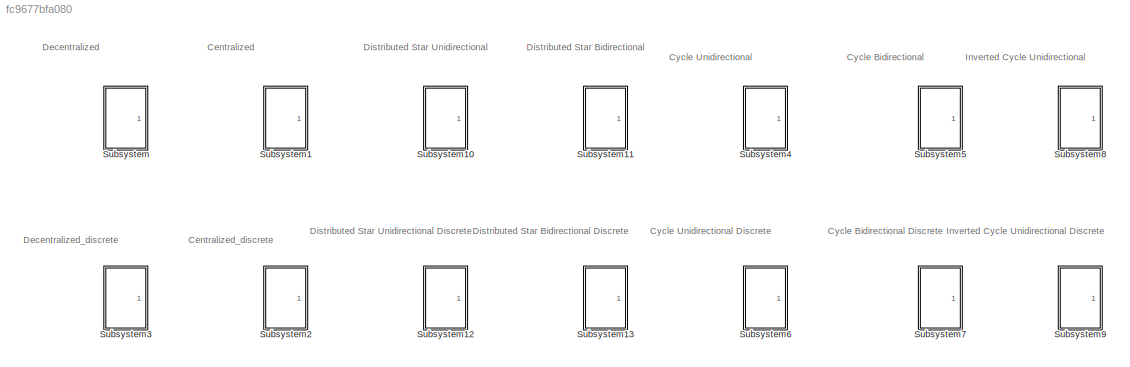
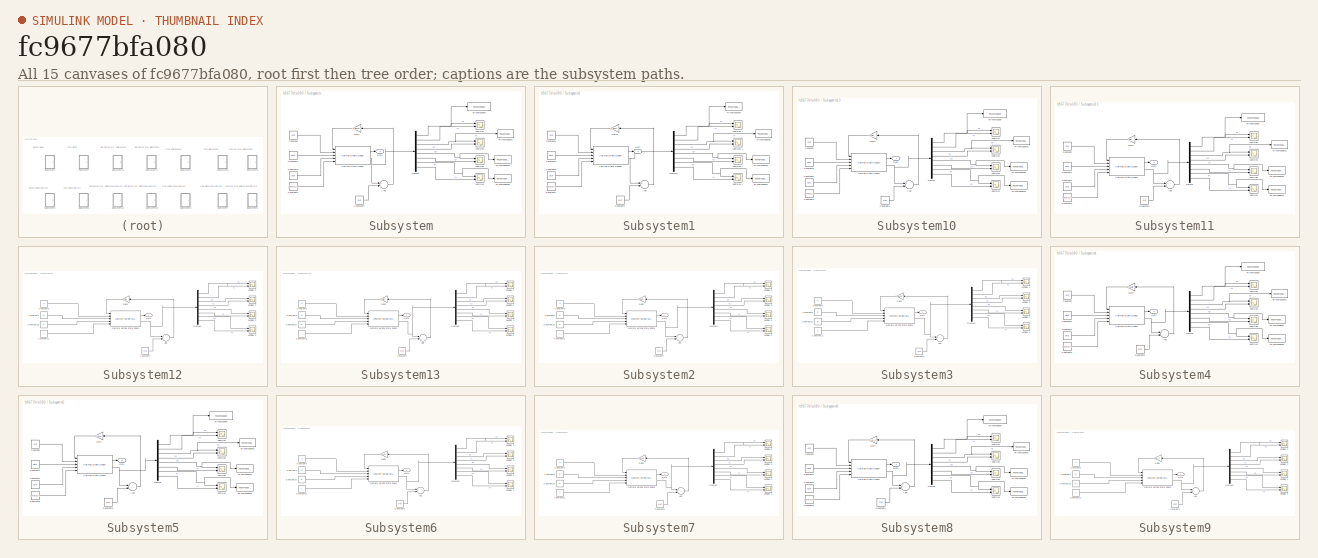
[diagram: thumbnail index - all 15 canvases of the model, root first then tree order]
MODEL slx_fc9677bfa080
KIND model
CONFIG AbsTol = auto
CONFIG EnableMultiTasking = off
CONFIG FixedStep = auto
CONFIG MaxStep = auto
CONFIG MinStep = auto
CONFIG RelTol = 1e-3
CONFIG SampleTimeConstraint = Unconstrained
CONFIG Solver = VariableStepAuto
CONFIG SolverName = VariableStepAuto
CONFIG StartTime = 0.0
CONFIG StopTime = 20
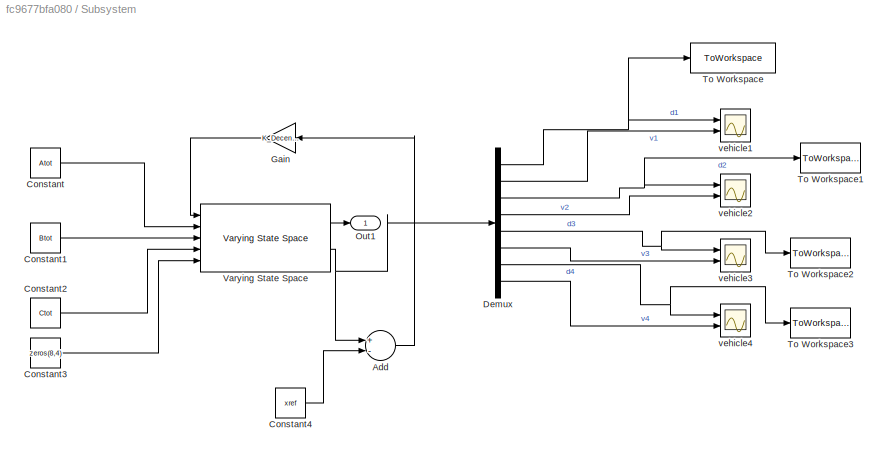
BLOCK [SubSystem] Subsystem
  Ports = [0, 1]
  RequestExecContextInheritance = off
BLOCK [Sum] Subsystem/Add
  InputSameDT = off
  Inputs = +-
  OutDataTypeStr = Inherit: Inherit via internal rule
  Ports = [2, 1]
  SaturateOnIntegerOverflow = off
BLOCK [Constant] Subsystem/Constant
  Value = Atot
BLOCK [Constant] Subsystem/Constant1
  Value = Btot
BLOCK [Constant] Subsystem/Constant2
  Value = Ctot
BLOCK [Constant] Subsystem/Constant3
  Value = zeros(8,4)
BLOCK [Constant] Subsystem/Constant4
  Value = xref
BLOCK [Demux] Subsystem/Demux
  DisplayOption = bar
  Outputs = 8
  Ports = [1, 8]
BLOCK [Gain] Subsystem/Gain
  Gain = K_Decentr_CT
  Multiplication = Matrix(K*u) (u vector)
  OutDataTypeStr = Inherit: Inherit via internal rule
  ParamDataTypeStr = Inherit: Inherit via internal rule
  SaturateOnIntegerOverflow = off
BLOCK [Outport] Subsystem/Out1
  IconDisplay = Port number
  VectorParamsAs1DForOutWhenUnconnected = off
BLOCK [ToWorkspace] Subsystem/To Workspace
  FixptAsFi = on
  MaxDataPoints = inf
  Ports = [1]
  SampleTime = h_c
  Save2DSignal = 2-D array (concatenate along first dimension)
  SaveFormat = Timeseries
  VariableName = V1_decentralized
BLOCK [ToWorkspace] Subsystem/To Workspace1
  FixptAsFi = on
  MaxDataPoints = inf
  Ports = [1]
  SampleTime = h_c
  Save2DSignal = 2-D array (concatenate along first dimension)
  SaveFormat = Timeseries
  VariableName = V2_decentralized
BLOCK [ToWorkspace] Subsystem/To Workspace2
  FixptAsFi = on
  MaxDataPoints = inf
  Ports = [1]
  SampleTime = h_c
  Save2DSignal = 2-D array (concatenate along first dimension)
  SaveFormat = Timeseries
  VariableName = V3_decentralized
BLOCK [ToWorkspace] Subsystem/To Workspace3
  FixptAsFi = on
  MaxDataPoints = inf
  Ports = [1]
  SampleTime = h_c
  Save2DSignal = 2-D array (concatenate along first dimension)
  SaveFormat = Timeseries
  VariableName = V4_decentralized
BLOCK [Reference] Subsystem/Varying State Space  REF=cstblocks/Linear Parameter Varying/Varying State Space
  Ports = [5, 2]
  SourceBlock = cstblocks/Linear Parameter Varying/Varying State Space
  SourceProductBaseCode = CT
  SourceProductName = Control System Toolbox
  SourceType = Varying State Space
BLOCK [Scope] Subsystem/vehicle1 
  Floating = off
  NumInputPorts = 2
  Ports = [2]
  ScopeSpecificationString = Simulink.scopes.TimeScopeBlockCfg('CurrentConfiguration', extmgr.ConfigurationSet(extmgr.Configuration('Core','General UI',true),extmgr.Configuration('Core','Source UI',true),extmgr.Configuration('Sources','WiredSimulink',true,'DataLoggingVariableName','ScopeData1'),extmgr.Configuration('Visuals','Time Domain',true,'SerializedDisplays',{struct('MinYLimReal','-2.02584','MaxYLimReal','5.78065','YLab...<+1440ch>
BLOCK [Scope] Subsystem/vehicle2 
  Floating = off
  NumInputPorts = 2
  Ports = [2]
  ScopeSpecificationString = Simulink.scopes.TimeScopeBlockCfg('CurrentConfiguration', extmgr.ConfigurationSet(extmgr.Configuration('Core','General UI',true),extmgr.Configuration('Core','Source UI',true),extmgr.Configuration('Sources','WiredSimulink',true,'DataLoggingVariableName','ScopeData2'),extmgr.Configuration('Visuals','Time Domain',true,'SerializedDisplays',{struct('MinYLimReal','-2.31339','MaxYLimReal','5.81589','YLab...<+1393ch>
BLOCK [Scope] Subsystem/vehicle3 
  Floating = off
  NumInputPorts = 2
  Ports = [2]
  ScopeSpecificationString = Simulink.scopes.TimeScopeBlockCfg('CurrentConfiguration', extmgr.ConfigurationSet(extmgr.Configuration('Core','General UI',true),extmgr.Configuration('Core','Source UI',true),extmgr.Configuration('Sources','WiredSimulink',true,'DataLoggingVariableName','ScopeData3'),extmgr.Configuration('Visuals','Time Domain',true,'SerializedDisplays',{struct('MinYLimReal','-2.68031','MaxYLimReal','5.85337','YLab...<+1393ch>
BLOCK [Scope] Subsystem/vehicle4 
  Floating = off
  NumInputPorts = 2
  Ports = [2]
  ScopeSpecificationString = Simulink.scopes.TimeScopeBlockCfg('CurrentConfiguration', extmgr.ConfigurationSet(extmgr.Configuration('Core','General UI',true),extmgr.Configuration('Core','Source UI',true),extmgr.Configuration('Sources','WiredSimulink',true),extmgr.Configuration('Visuals','Time Domain',true,'SerializedDisplays',{struct('MinYLimReal','-4.43178','MaxYLimReal','6.04798','YLabelReal','','MinYLimMag','0.00000','MaxY...<+1352ch>
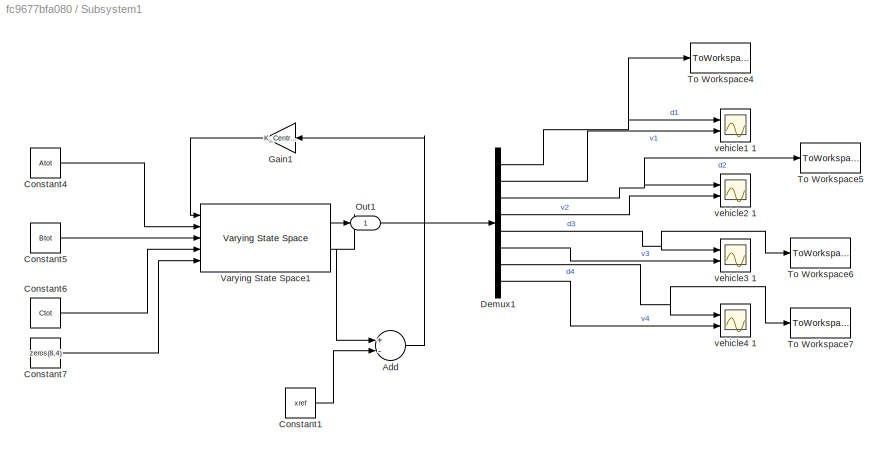
BLOCK [SubSystem] Subsystem1
  Ports = [0, 1]
  RequestExecContextInheritance = off
BLOCK [Sum] Subsystem1/Add
  InputSameDT = off
  Inputs = +-
  OutDataTypeStr = Inherit: Inherit via internal rule
  Ports = [2, 1]
  SaturateOnIntegerOverflow = off
BLOCK [Constant] Subsystem1/Constant1
  Value = xref
BLOCK [Constant] Subsystem1/Constant4
  Value = Atot
BLOCK [Constant] Subsystem1/Constant5
  Value = Btot
BLOCK [Constant] Subsystem1/Constant6
  Value = Ctot
BLOCK [Constant] Subsystem1/Constant7
  Value = zeros(8,4)
BLOCK [Demux] Subsystem1/Demux1
  DisplayOption = bar
  Outputs = 8
  Ports = [1, 8]
BLOCK [Gain] Subsystem1/Gain1
  Gain = K_Centr_CT
  Multiplication = Matrix(K*u) (u vector)
  OutDataTypeStr = Inherit: Inherit via internal rule
  ParamDataTypeStr = Inherit: Inherit via internal rule
  SaturateOnIntegerOverflow = off
BLOCK [Outport] Subsystem1/Out1
  IconDisplay = Port number
  VectorParamsAs1DForOutWhenUnconnected = off
BLOCK [ToWorkspace] Subsystem1/To Workspace4
  FixptAsFi = on
  MaxDataPoints = inf
  Ports = [1]
  SampleTime = h_c
  Save2DSignal = 2-D array (concatenate along first dimension)
  SaveFormat = Timeseries
  VariableName = V1_centralized
BLOCK [ToWorkspace] Subsystem1/To Workspace5
  FixptAsFi = on
  MaxDataPoints = inf
  Ports = [1]
  SampleTime = h_c
  Save2DSignal = 2-D array (concatenate along first dimension)
  SaveFormat = Timeseries
  VariableName = V2_centralized
BLOCK [ToWorkspace] Subsystem1/To Workspace6
  FixptAsFi = on
  MaxDataPoints = inf
  Ports = [1]
  SampleTime = h_c
  Save2DSignal = 2-D array (concatenate along first dimension)
  SaveFormat = Timeseries
  VariableName = V3_centralized
BLOCK [ToWorkspace] Subsystem1/To Workspace7
  FixptAsFi = on
  MaxDataPoints = inf
  Ports = [1]
  SampleTime = h_c
  Save2DSignal = 2-D array (concatenate along first dimension)
  SaveFormat = Timeseries
  VariableName = V4_centralized
BLOCK [Reference] Subsystem1/Varying State Space1  REF=cstblocks/Linear Parameter Varying/Varying State Space
  Ports = [5, 2]
  SourceBlock = cstblocks/Linear Parameter Varying/Varying State Space
  SourceProductBaseCode = CT
  SourceProductName = Control System Toolbox
  SourceType = Varying State Space
BLOCK [Scope] Subsystem1/vehicle1 1
  Floating = off
  NumInputPorts = 2
  Ports = [2]
  ScopeSpecificationString = Simulink.scopes.TimeScopeBlockCfg('CurrentConfiguration', extmgr.ConfigurationSet(extmgr.Configuration('Core','General UI',true),extmgr.Configuration('Core','Source UI',true),extmgr.Configuration('Sources','WiredSimulink',true,'DataLoggingVariableName','ScopeData1'),extmgr.Configuration('Visuals','Time Domain',true,'SerializedDisplays',{struct('MinYLimReal','-4.0053','MaxYLimReal','11.55614','YLab...<+1442ch>
BLOCK [Scope] Subsystem1/vehicle2 1
  Floating = off
  NumInputPorts = 2
  Ports = [2]
  ScopeSpecificationString = Simulink.scopes.TimeScopeBlockCfg('CurrentConfiguration', extmgr.ConfigurationSet(extmgr.Configuration('Core','General UI',true),extmgr.Configuration('Core','Source UI',true),extmgr.Configuration('Sources','WiredSimulink',true,'DataLoggingVariableName','ScopeData2'),extmgr.Configuration('Visuals','Time Domain',true,'SerializedDisplays',{struct('MinYLimReal','-6.59598','MaxYLimReal','11.844','YLabe...<+1389ch>
BLOCK [Scope] Subsystem1/vehicle3 1
  Floating = off
  NumInputPorts = 2
  Ports = [2]
  ScopeSpecificationString = Simulink.scopes.TimeScopeBlockCfg('CurrentConfiguration', extmgr.ConfigurationSet(extmgr.Configuration('Core','General UI',true),extmgr.Configuration('Core','Source UI',true),extmgr.Configuration('Sources','WiredSimulink',true,'DataLoggingVariableName','ScopeData3'),extmgr.Configuration('Visuals','Time Domain',true,'SerializedDisplays',{struct('MinYLimReal','-9.44799','MaxYLimReal','12.16089','YLa...<+1397ch>
BLOCK [Scope] Subsystem1/vehicle4 1
  Floating = off
  NumInputPorts = 2
  Ports = [2]
  ScopeSpecificationString = Simulink.scopes.TimeScopeBlockCfg('CurrentConfiguration', extmgr.ConfigurationSet(extmgr.Configuration('Core','General UI',true),extmgr.Configuration('Core','Source UI',true),extmgr.Configuration('Sources','WiredSimulink',true,'DataLoggingVariableName','ScopeData4'),extmgr.Configuration('Visuals','Time Domain',true,'SerializedDisplays',{struct('MinYLimReal','-12.32019','MaxYLimReal','12.48002','YL...<+1399ch>
BLOCK [SubSystem] Subsystem10
  Ports = [0, 1]
  RequestExecContextInheritance = off
BLOCK [Sum] Subsystem10/Add
  InputSameDT = off
  Inputs = +-
  OutDataTypeStr = Inherit: Inherit via internal rule
  Ports = [2, 1]
  SaturateOnIntegerOverflow = off
BLOCK [Constant] Subsystem10/Constant
  Value = Atot
BLOCK [Constant] Subsystem10/Constant1
  Value = Btot
BLOCK [Constant] Subsystem10/Constant2
  Value = Ctot
BLOCK [Constant] Subsystem10/Constant3
  Value = zeros(8,4)
BLOCK [Constant] Subsystem10/Constant4
  Value = xref
BLOCK [Demux] Subsystem10/Demux
  DisplayOption = bar
  Outputs = 8
  Ports = [1, 8]
BLOCK [Gain] Subsystem10/Gain
  Gain = K_Dist_Star_Uni_CT
  Multiplication = Matrix(K*u) (u vector)
  OutDataTypeStr = Inherit: Inherit via internal rule
  ParamDataTypeStr = Inherit: Inherit via internal rule
  SaturateOnIntegerOverflow = off
BLOCK [Outport] Subsystem10/Out1
  IconDisplay = Port number
  VectorParamsAs1DForOutWhenUnconnected = off
BLOCK [ToWorkspace] Subsystem10/To Workspace
  FixptAsFi = on
  MaxDataPoints = inf
  Ports = [1]
  SampleTime = h_c
  Save2DSignal = 2-D array (concatenate along first dimension)
  SaveFormat = Timeseries
  VariableName = V1_dist_uni
BLOCK [ToWorkspace] Subsystem10/To Workspace1
  FixptAsFi = on
  MaxDataPoints = inf
  Ports = [1]
  SampleTime = h_c
  Save2DSignal = 2-D array (concatenate along first dimension)
  SaveFormat = Timeseries
  VariableName = V2_dist_uni
BLOCK [ToWorkspace] Subsystem10/To Workspace2
  FixptAsFi = on
  MaxDataPoints = inf
  Ports = [1]
  SampleTime = h_c
  Save2DSignal = 2-D array (concatenate along first dimension)
  SaveFormat = Timeseries
  VariableName = V3_dist_uni
BLOCK [ToWorkspace] Subsystem10/To Workspace3
  FixptAsFi = on
  MaxDataPoints = inf
  Ports = [1]
  SampleTime = h_c
  Save2DSignal = 2-D array (concatenate along first dimension)
  SaveFormat = Timeseries
  VariableName = V4_dist_uni
BLOCK [Reference] Subsystem10/Varying State Space  REF=cstblocks/Linear Parameter Varying/Varying State Space
  Ports = [5, 2]
  SourceBlock = cstblocks/Linear Parameter Varying/Varying State Space
  SourceProductBaseCode = CT
  SourceProductName = Control System Toolbox
  SourceType = Varying State Space
BLOCK [Scope] Subsystem10/vehicle1 
  Floating = off
  NumInputPorts = 2
  Ports = [2]
  ScopeSpecificationString = Simulink.scopes.TimeScopeBlockCfg('CurrentConfiguration', extmgr.ConfigurationSet(extmgr.Configuration('Core','General UI',true),extmgr.Configuration('Core','Source UI',true),extmgr.Configuration('Sources','WiredSimulink',true,'DataLoggingVariableName','ScopeData1'),extmgr.Configuration('Visuals','Time Domain',true,'SerializedDisplays',{struct('MinYLimReal','-4.12435','MaxYLimReal','11.56937','YLa...<+1444ch>
BLOCK [Scope] Subsystem10/vehicle2 
  Floating = off
  NumInputPorts = 2
  Ports = [2]
  ScopeSpecificationString = Simulink.scopes.TimeScopeBlockCfg('CurrentConfiguration', extmgr.ConfigurationSet(extmgr.Configuration('Core','General UI',true),extmgr.Configuration('Core','Source UI',true),extmgr.Configuration('Sources','WiredSimulink',true,'DataLoggingVariableName','ScopeData2'),extmgr.Configuration('Visuals','Time Domain',true,'SerializedDisplays',{struct('MinYLimReal','-5.23289','MaxYLimReal','11.69254','YLa...<+1397ch>  <repeated x5 — deduplicated; at blocks: vehicle2>
BLOCK [Scope] Subsystem10/vehicle3 
  Floating = off
  NumInputPorts = 2
  Ports = [2]
  ScopeSpecificationString = Simulink.scopes.TimeScopeBlockCfg('CurrentConfiguration', extmgr.ConfigurationSet(extmgr.Configuration('Core','General UI',true),extmgr.Configuration('Core','Source UI',true),extmgr.Configuration('Sources','WiredSimulink',true,'DataLoggingVariableName','ScopeData3'),extmgr.Configuration('Visuals','Time Domain',true,'SerializedDisplays',{struct('MinYLimReal','-6.35066','MaxYLimReal','11.81674','YLa...<+1397ch>  <repeated x5 — deduplicated; at blocks: vehicle3>
BLOCK [Scope] Subsystem10/vehicle4 
  Floating = off
  NumInputPorts = 2
  Ports = [2]
  ScopeSpecificationString = Simulink.scopes.TimeScopeBlockCfg('CurrentConfiguration', extmgr.ConfigurationSet(extmgr.Configuration('Core','General UI',true),extmgr.Configuration('Core','Source UI',true),extmgr.Configuration('Sources','WiredSimulink',true),extmgr.Configuration('Visuals','Time Domain',true,'SerializedDisplays',{struct('MinYLimReal','-12.32019','MaxYLimReal','12.48002','YLabelReal','','MinYLimMag','0.00000','Ma...<+1360ch>  <repeated x5 — deduplicated; at blocks: vehicle4>
BLOCK [SubSystem] Subsystem11
  Ports = [0, 1]
  RequestExecContextInheritance = off
BLOCK [Sum] Subsystem11/Add
  InputSameDT = off
  Inputs = +-
  OutDataTypeStr = Inherit: Inherit via internal rule
  Ports = [2, 1]
  SaturateOnIntegerOverflow = off
BLOCK [Constant] Subsystem11/Constant
  Value = Atot
BLOCK [Constant] Subsystem11/Constant1
  Value = Btot
BLOCK [Constant] Subsystem11/Constant2
  Value = Ctot
BLOCK [Constant] Subsystem11/Constant3
  Value = zeros(8,4)
BLOCK [Constant] Subsystem11/Constant4
  Value = xref
BLOCK [Demux] Subsystem11/Demux
  DisplayOption = bar
  Outputs = 8
  Ports = [1, 8]
BLOCK [Gain] Subsystem11/Gain
  Gain = K_Dist_Star_Bi_CT
  Multiplication = Matrix(K*u) (u vector)
  OutDataTypeStr = Inherit: Inherit via internal rule
  ParamDataTypeStr = Inherit: Inherit via internal rule
  SaturateOnIntegerOverflow = off
BLOCK [Outport] Subsystem11/Out1
  IconDisplay = Port number
  VectorParamsAs1DForOutWhenUnconnected = off
BLOCK [ToWorkspace] Subsystem11/To Workspace
  FixptAsFi = on
  MaxDataPoints = inf
  Ports = [1]
  SampleTime = h_c
  Save2DSignal = 2-D array (concatenate along first dimension)
  SaveFormat = Timeseries
  VariableName = V1_dist_bi
BLOCK [ToWorkspace] Subsystem11/To Workspace1
  FixptAsFi = on
  MaxDataPoints = inf
  Ports = [1]
  SampleTime = h_c
  Save2DSignal = 2-D array (concatenate along first dimension)
  SaveFormat = Timeseries
  VariableName = V2_dist_bi
BLOCK [ToWorkspace] Subsystem11/To Workspace2
  FixptAsFi = on
  MaxDataPoints = inf
  Ports = [1]
  SampleTime = h_c
  Save2DSignal = 2-D array (concatenate along first dimension)
  SaveFormat = Timeseries
  VariableName = V3_dist_bi
BLOCK [ToWorkspace] Subsystem11/To Workspace3
  FixptAsFi = on
  MaxDataPoints = inf
  Ports = [1]
  SampleTime = h_c
  Save2DSignal = 2-D array (concatenate along first dimension)
  SaveFormat = Timeseries
  VariableName = V4_dist_bi
BLOCK [Reference] Subsystem11/Varying State Space  REF=cstblocks/Linear Parameter Varying/Varying State Space
  Ports = [5, 2]
  SourceBlock = cstblocks/Linear Parameter Varying/Varying State Space
  SourceProductBaseCode = CT
  SourceProductName = Control System Toolbox
  SourceType = Varying State Space
BLOCK [Scope] Subsystem11/vehicle1 
  Floating = off
  NumInputPorts = 2
  Ports = [2]
  ScopeSpecificationString = Simulink.scopes.TimeScopeBlockCfg('CurrentConfiguration', extmgr.ConfigurationSet(extmgr.Configuration('Core','General UI',true),extmgr.Configuration('Core','Source UI',true),extmgr.Configuration('Sources','WiredSimulink',true,'DataLoggingVariableName','ScopeData1'),extmgr.Configuration('Visuals','Time Domain',true,'SerializedDisplays',{struct('MinYLimReal','-4.05168','MaxYLimReal','11.5613','YLab...<+1433ch>
BLOCK [Scope] Subsystem11/vehicle2 
  Floating = off
  NumInputPorts = 2
  Ports = [2]
BLOCK [Scope] Subsystem11/vehicle3 
  Floating = off
  NumInputPorts = 2
  Ports = [2]
BLOCK [Scope] Subsystem11/vehicle4 
  Floating = off
  NumInputPorts = 2
  Ports = [2]
BLOCK [SubSystem] Subsystem12
  Ports = [0, 1]
  RequestExecContextInheritance = off
BLOCK [Sum] Subsystem12/Add
  InputSameDT = off
  Inputs = +-
  OutDataTypeStr = Inherit: Inherit via internal rule
  Ports = [2, 1]
  SaturateOnIntegerOverflow = off
BLOCK [Constant] Subsystem12/Constant10
  Value = H
BLOCK [Constant] Subsystem12/Constant11
  Value = L
BLOCK [Constant] Subsystem12/Constant4
  Value = xref
BLOCK [Constant] Subsystem12/Constant8
  Value = F
BLOCK [Constant] Subsystem12/Constant9
  Value = G
BLOCK [Demux] Subsystem12/Demux2
  DisplayOption = bar
  Outputs = 8
  Ports = [1, 8]
BLOCK [Reference] Subsystem12/Discrete Varying State Space  REF=cstblocks/Linear Parameter Varying/Discrete Varying State Space
  Ports = [5, 2]
  SourceBlock = cstblocks/Linear Parameter Varying/Discrete Varying State Space
  SourceProductBaseCode = CT
  SourceProductName = Control System Toolbox
  SourceType = Discrete Varying State Space
BLOCK [Gain] Subsystem12/Gain2
  Gain = K_Dist_Star_Uni_DT
  Multiplication = Matrix(K*u) (u vector)
  OutDataTypeStr = Inherit: Inherit via internal rule
  ParamDataTypeStr = Inherit: Inherit via internal rule
  SaturateOnIntegerOverflow = off
BLOCK [Outport] Subsystem12/Out1
  IconDisplay = Port number
  VectorParamsAs1DForOutWhenUnconnected = off
BLOCK [Scope] Subsystem12/vehicle1 2
  Floating = off
  NumInputPorts = 2
  Ports = [2]
  ScopeSpecificationString = Simulink.scopes.TimeScopeBlockCfg('CurrentConfiguration', extmgr.ConfigurationSet(extmgr.Configuration('Core','General UI',true),extmgr.Configuration('Core','Source UI',true),extmgr.Configuration('Sources','WiredSimulink',true,'DataLoggingVariableName','ScopeData1'),extmgr.Configuration('Visuals','Time Domain',true,'SerializedDisplays',{struct('MinYLimReal','-2.75958','MaxYLimReal','11.41773','YLa...<+1444ch>  <repeated x6 — deduplicated; at blocks: vehicle1 2>
BLOCK [Scope] Subsystem12/vehicle2 2
  Floating = off
  NumInputPorts = 2
  Ports = [2]
  ScopeSpecificationString = Simulink.scopes.TimeScopeBlockCfg('CurrentConfiguration', extmgr.ConfigurationSet(extmgr.Configuration('Core','General UI',true),extmgr.Configuration('Core','Source UI',true),extmgr.Configuration('Sources','WiredSimulink',true,'DataLoggingVariableName','ScopeData2'),extmgr.Configuration('Visuals','Time Domain',true,'SerializedDisplays',{struct('MinYLimReal','-4.5068','MaxYLimReal','11.61187','YLab...<+1395ch>  <repeated x6 — deduplicated; at blocks: vehicle2 2>
BLOCK [Scope] Subsystem12/vehicle3 2
  Floating = off
  NumInputPorts = 2
  Ports = [2]
  ScopeSpecificationString = Simulink.scopes.TimeScopeBlockCfg('CurrentConfiguration', extmgr.ConfigurationSet(extmgr.Configuration('Core','General UI',true),extmgr.Configuration('Core','Source UI',true),extmgr.Configuration('Sources','WiredSimulink',true,'DataLoggingVariableName','ScopeData3'),extmgr.Configuration('Visuals','Time Domain',true,'SerializedDisplays',{struct('MinYLimReal','-6.94669','MaxYLimReal','11.88297','YLa...<+1397ch>  <repeated x6 — deduplicated; at blocks: vehicle3 2>
BLOCK [Scope] Subsystem12/vehicle4 2
  Floating = off
  NumInputPorts = 2
  Ports = [2]
  ScopeSpecificationString = Simulink.scopes.TimeScopeBlockCfg('CurrentConfiguration', extmgr.ConfigurationSet(extmgr.Configuration('Core','General UI',true),extmgr.Configuration('Core','Source UI',true),extmgr.Configuration('Sources','WiredSimulink',true,'DataLoggingVariableName','ScopeData4'),extmgr.Configuration('Visuals','Time Domain',true,'SerializedDisplays',{struct('MinYLimReal','-11.49658','MaxYLimReal','12.38851','YL...<+1399ch>  <repeated x6 — deduplicated; at blocks: vehicle4 2>
BLOCK [SubSystem] Subsystem13
  Ports = [0, 1]
  RequestExecContextInheritance = off
BLOCK [Sum] Subsystem13/Add
  InputSameDT = off
  Inputs = +-
  OutDataTypeStr = Inherit: Inherit via internal rule
  Ports = [2, 1]
  SaturateOnIntegerOverflow = off
BLOCK [Constant] Subsystem13/Constant10
  Value = H
BLOCK [Constant] Subsystem13/Constant11
  Value = L
BLOCK [Constant] Subsystem13/Constant4
  Value = xref
BLOCK [Constant] Subsystem13/Constant8
  Value = F
BLOCK [Constant] Subsystem13/Constant9
  Value = G
BLOCK [Demux] Subsystem13/Demux2
  DisplayOption = bar
  Outputs = 8
  Ports = [1, 8]
BLOCK [Reference] Subsystem13/Discrete Varying State Space  REF=cstblocks/Linear Parameter Varying/Discrete Varying State Space
  Ports = [5, 2]
  SourceBlock = cstblocks/Linear Parameter Varying/Discrete Varying State Space
  SourceProductBaseCode = CT
  SourceProductName = Control System Toolbox
  SourceType = Discrete Varying State Space
BLOCK [Gain] Subsystem13/Gain2
  Gain = K_Dist_Star_Bi_DT
  Multiplication = Matrix(K*u) (u vector)
  OutDataTypeStr = Inherit: Inherit via internal rule
  ParamDataTypeStr = Inherit: Inherit via internal rule
  SaturateOnIntegerOverflow = off
BLOCK [Outport] Subsystem13/Out1
  IconDisplay = Port number
  VectorParamsAs1DForOutWhenUnconnected = off
BLOCK [Scope] Subsystem13/vehicle1 2
  Floating = off
  NumInputPorts = 2
  Ports = [2]
BLOCK [Scope] Subsystem13/vehicle2 2
  Floating = off
  NumInputPorts = 2
  Ports = [2]
BLOCK [Scope] Subsystem13/vehicle3 2
  Floating = off
  NumInputPorts = 2
  Ports = [2]
BLOCK [Scope] Subsystem13/vehicle4 2
  Floating = off
  NumInputPorts = 2
  Ports = [2]
BLOCK [SubSystem] Subsystem2
  Ports = [0, 1]
  RequestExecContextInheritance = off
BLOCK [Sum] Subsystem2/Add
  InputSameDT = off
  Inputs = +-
  OutDataTypeStr = Inherit: Inherit via internal rule
  Ports = [2, 1]
  SaturateOnIntegerOverflow = off
BLOCK [Constant] Subsystem2/Constant10
  Value = H
BLOCK [Constant] Subsystem2/Constant11
  Value = L
BLOCK [Constant] Subsystem2/Constant4
  Value = xref
BLOCK [Constant] Subsystem2/Constant8
  Value = F
BLOCK [Constant] Subsystem2/Constant9
  Value = G
BLOCK [Demux] Subsystem2/Demux2
  DisplayOption = bar
  Outputs = 8
  Ports = [1, 8]
BLOCK [Reference] Subsystem2/Discrete Varying State Space  REF=cstblocks/Linear Parameter Varying/Discrete Varying State Space
  Ports = [5, 2]
  SourceBlock = cstblocks/Linear Parameter Varying/Discrete Varying State Space
  SourceProductBaseCode = CT
  SourceProductName = Control System Toolbox
  SourceType = Discrete Varying State Space
BLOCK [Gain] Subsystem2/Gain2
  Gain = K_Centr_DT
  Multiplication = Matrix(K*u) (u vector)
  OutDataTypeStr = Inherit: Inherit via internal rule
  ParamDataTypeStr = Inherit: Inherit via internal rule
  SaturateOnIntegerOverflow = off
BLOCK [Outport] Subsystem2/Out1
  IconDisplay = Port number
  VectorParamsAs1DForOutWhenUnconnected = off
BLOCK [Scope] Subsystem2/vehicle1 2
  Floating = off
  NumInputPorts = 2
  Ports = [2]
BLOCK [Scope] Subsystem2/vehicle2 2
  Floating = off
  NumInputPorts = 2
  Ports = [2]
BLOCK [Scope] Subsystem2/vehicle3 2
  Floating = off
  NumInputPorts = 2
  Ports = [2]
BLOCK [Scope] Subsystem2/vehicle4 2
  Floating = off
  NumInputPorts = 2
  Ports = [2]
BLOCK [SubSystem] Subsystem3
  Ports = [0, 1]
  RequestExecContextInheritance = off
BLOCK [Sum] Subsystem3/Add
  InputSameDT = off
  Inputs = +-
  OutDataTypeStr = Inherit: Inherit via internal rule
  Ports = [2, 1]
  SaturateOnIntegerOverflow = off
BLOCK [Constant] Subsystem3/Constant10
  Value = H
BLOCK [Constant] Subsystem3/Constant11
  Value = L
BLOCK [Constant] Subsystem3/Constant4
  Value = xref
BLOCK [Constant] Subsystem3/Constant8
  Value = F
BLOCK [Constant] Subsystem3/Constant9
  Value = G
BLOCK [Demux] Subsystem3/Demux2
  DisplayOption = bar
  Outputs = 8
  Ports = [1, 8]
BLOCK [Reference] Subsystem3/Discrete Varying State Space  REF=cstblocks/Linear Parameter Varying/Discrete Varying State Space
  Ports = [5, 2]
  SourceBlock = cstblocks/Linear Parameter Varying/Discrete Varying State Space
  SourceProductBaseCode = CT
  SourceProductName = Control System Toolbox
  SourceType = Discrete Varying State Space
BLOCK [Gain] Subsystem3/Gain2
  Gain = K_Decentr_DT
  Multiplication = Matrix(K*u) (u vector)
  OutDataTypeStr = Inherit: Inherit via internal rule
  ParamDataTypeStr = Inherit: Inherit via internal rule
  SaturateOnIntegerOverflow = off
BLOCK [Outport] Subsystem3/Out1
  IconDisplay = Port number
  VectorParamsAs1DForOutWhenUnconnected = off
BLOCK [Scope] Subsystem3/vehicle1 2
  Floating = off
  NumInputPorts = 2
  Ports = [2]
  ScopeSpecificationString = Simulink.scopes.TimeScopeBlockCfg('CurrentConfiguration', extmgr.ConfigurationSet(extmgr.Configuration('Core','General UI',true),extmgr.Configuration('Core','Source UI',true),extmgr.Configuration('Sources','WiredSimulink',true,'DataLoggingVariableName','ScopeData5'),extmgr.Configuration('Visuals','Time Domain',true,'SerializedDisplays',{struct('MinYLimReal','-5.57506','MaxYLimReal','11.73056','YLa...<+1440ch>
BLOCK [Scope] Subsystem3/vehicle2 2
  Floating = off
  NumInputPorts = 2
  Ports = [2]
  ScopeSpecificationString = Simulink.scopes.TimeScopeBlockCfg('CurrentConfiguration', extmgr.ConfigurationSet(extmgr.Configuration('Core','General UI',true),extmgr.Configuration('Core','Source UI',true),extmgr.Configuration('Sources','WiredSimulink',true,'DataLoggingVariableName','ScopeData6'),extmgr.Configuration('Visuals','Time Domain',true,'SerializedDisplays',{struct('MinYLimReal','-6.72769','MaxYLimReal','11.85863','YLa...<+1397ch>
BLOCK [Scope] Subsystem3/vehicle3 2
  Floating = off
  NumInputPorts = 2
  Ports = [2]
  ScopeSpecificationString = Simulink.scopes.TimeScopeBlockCfg('CurrentConfiguration', extmgr.ConfigurationSet(extmgr.Configuration('Core','General UI',true),extmgr.Configuration('Core','Source UI',true),extmgr.Configuration('Sources','WiredSimulink',true,'DataLoggingVariableName','ScopeData7'),extmgr.Configuration('Visuals','Time Domain',true,'SerializedDisplays',{struct('MinYLimReal','-7.47516','MaxYLimReal','11.94168','YLa...<+1397ch>
BLOCK [Scope] Subsystem3/vehicle4 2
  Floating = off
  NumInputPorts = 2
  Ports = [2]
  ScopeSpecificationString = Simulink.scopes.TimeScopeBlockCfg('CurrentConfiguration', extmgr.ConfigurationSet(extmgr.Configuration('Core','General UI',true),extmgr.Configuration('Core','Source UI',true),extmgr.Configuration('Sources','WiredSimulink',true,'DataLoggingVariableName','ScopeData8'),extmgr.Configuration('Visuals','Time Domain',true,'SerializedDisplays',{struct('MinYLimReal','-8.77148','MaxYLimReal','12.08572','YLa...<+1401ch>
BLOCK [SubSystem] Subsystem4
  Ports = [0, 1]
  RequestExecContextInheritance = off
BLOCK [Sum] Subsystem4/Add
  InputSameDT = off
  Inputs = +-
  OutDataTypeStr = Inherit: Inherit via internal rule
  Ports = [2, 1]
  SaturateOnIntegerOverflow = off
BLOCK [Constant] Subsystem4/Constant
  Value = Atot
BLOCK [Constant] Subsystem4/Constant1
  Value = Btot
BLOCK [Constant] Subsystem4/Constant2
  Value = Ctot
BLOCK [Constant] Subsystem4/Constant3
  Value = zeros(8,4)
BLOCK [Constant] Subsystem4/Constant4
  Value = xref
BLOCK [Demux] Subsystem4/Demux
  DisplayOption = bar
  Outputs = 8
  Ports = [1, 8]
BLOCK [Gain] Subsystem4/Gain
  Gain = K_CycleUnidir_CT
  Multiplication = Matrix(K*u) (u vector)
  OutDataTypeStr = Inherit: Inherit via internal rule
  ParamDataTypeStr = Inherit: Inherit via internal rule
  SaturateOnIntegerOverflow = off
BLOCK [Outport] Subsystem4/Out1
  IconDisplay = Port number
  VectorParamsAs1DForOutWhenUnconnected = off
BLOCK [ToWorkspace] Subsystem4/To Workspace
  FixptAsFi = on
  MaxDataPoints = inf
  Ports = [1]
  SampleTime = h_c
  Save2DSignal = 2-D array (concatenate along first dimension)
  SaveFormat = Timeseries
  VariableName = V1_cycle_uni
BLOCK [ToWorkspace] Subsystem4/To Workspace1
  FixptAsFi = on
  MaxDataPoints = inf
  Ports = [1]
  SampleTime = h_c
  Save2DSignal = 2-D array (concatenate along first dimension)
  SaveFormat = Timeseries
  VariableName = V2_cycle_uni
BLOCK [ToWorkspace] Subsystem4/To Workspace2
  FixptAsFi = on
  MaxDataPoints = inf
  Ports = [1]
  SampleTime = h_c
  Save2DSignal = 2-D array (concatenate along first dimension)
  SaveFormat = Timeseries
  VariableName = V3_cycle_uni
BLOCK [ToWorkspace] Subsystem4/To Workspace3
  FixptAsFi = on
  MaxDataPoints = inf
  Ports = [1]
  SampleTime = h_c
  Save2DSignal = 2-D array (concatenate along first dimension)
  SaveFormat = Timeseries
  VariableName = V4_cycle_uni
BLOCK [Reference] Subsystem4/Varying State Space  REF=cstblocks/Linear Parameter Varying/Varying State Space
  Ports = [5, 2]
  SourceBlock = cstblocks/Linear Parameter Varying/Varying State Space
  SourceProductBaseCode = CT
  SourceProductName = Control System Toolbox
  SourceType = Varying State Space
BLOCK [Scope] Subsystem4/vehicle1 
  Floating = off
  NumInputPorts = 2
  Ports = [2]
  ScopeSpecificationString = Simulink.scopes.TimeScopeBlockCfg('CurrentConfiguration', extmgr.ConfigurationSet(extmgr.Configuration('Core','General UI',true),extmgr.Configuration('Core','Source UI',true),extmgr.Configuration('Sources','WiredSimulink',true,'DataLoggingVariableName','ScopeData1'),extmgr.Configuration('Visuals','Time Domain',true,'SerializedDisplays',{struct('MinYLimReal','-4.05168','MaxYLimReal','11.5613','YLab...<+1440ch>  <repeated x3 — deduplicated; at blocks: vehicle1>
BLOCK [Scope] Subsystem4/vehicle2 
  Floating = off
  NumInputPorts = 2
  Ports = [2]
BLOCK [Scope] Subsystem4/vehicle3 
  Floating = off
  NumInputPorts = 2
  Ports = [2]
BLOCK [Scope] Subsystem4/vehicle4 
  Floating = off
  NumInputPorts = 2
  Ports = [2]
BLOCK [SubSystem] Subsystem5
  Ports = [0, 1]
  RequestExecContextInheritance = off
BLOCK [Sum] Subsystem5/Add
  InputSameDT = off
  Inputs = +-
  OutDataTypeStr = Inherit: Inherit via internal rule
  Ports = [2, 1]
  SaturateOnIntegerOverflow = off
BLOCK [Constant] Subsystem5/Constant
  Value = Atot
BLOCK [Constant] Subsystem5/Constant1
  Value = Btot
BLOCK [Constant] Subsystem5/Constant2
  Value = Ctot
BLOCK [Constant] Subsystem5/Constant3
  Value = zeros(8,4)
BLOCK [Constant] Subsystem5/Constant4
  Value = xref
BLOCK [Demux] Subsystem5/Demux
  DisplayOption = bar
  Outputs = 8
  Ports = [1, 8]
BLOCK [Gain] Subsystem5/Gain
  Gain = K_CycleBidir_CT
  Multiplication = Matrix(K*u) (u vector)
  OutDataTypeStr = Inherit: Inherit via internal rule
  ParamDataTypeStr = Inherit: Inherit via internal rule
  SaturateOnIntegerOverflow = off
BLOCK [Outport] Subsystem5/Out1
  IconDisplay = Port number
  VectorParamsAs1DForOutWhenUnconnected = off
BLOCK [ToWorkspace] Subsystem5/To Workspace
  FixptAsFi = on
  MaxDataPoints = inf
  Ports = [1]
  SampleTime = h_c
  Save2DSignal = 2-D array (concatenate along first dimension)
  SaveFormat = Timeseries
  VariableName = V1_cycle_bi
BLOCK [ToWorkspace] Subsystem5/To Workspace1
  FixptAsFi = on
  MaxDataPoints = inf
  Ports = [1]
  SampleTime = h_c
  Save2DSignal = 2-D array (concatenate along first dimension)
  SaveFormat = Timeseries
  VariableName = V2_cycle_bi
BLOCK [ToWorkspace] Subsystem5/To Workspace2
  FixptAsFi = on
  MaxDataPoints = inf
  Ports = [1]
  SampleTime = h_c
  Save2DSignal = 2-D array (concatenate along first dimension)
  SaveFormat = Timeseries
  VariableName = V3_cycle_bi
BLOCK [ToWorkspace] Subsystem5/To Workspace3
  FixptAsFi = on
  MaxDataPoints = inf
  Ports = [1]
  SampleTime = h_c
  Save2DSignal = 2-D array (concatenate along first dimension)
  SaveFormat = Timeseries
  VariableName = V4_cycle_bi
BLOCK [Reference] Subsystem5/Varying State Space  REF=cstblocks/Linear Parameter Varying/Varying State Space
  Ports = [5, 2]
  SourceBlock = cstblocks/Linear Parameter Varying/Varying State Space
  SourceProductBaseCode = CT
  SourceProductName = Control System Toolbox
  SourceType = Varying State Space
BLOCK [Scope] Subsystem5/vehicle1 
  Floating = off
  NumInputPorts = 2
  Ports = [2]
BLOCK [Scope] Subsystem5/vehicle2 
  Floating = off
  NumInputPorts = 2
  Ports = [2]
BLOCK [Scope] Subsystem5/vehicle3 
  Floating = off
  NumInputPorts = 2
  Ports = [2]
BLOCK [Scope] Subsystem5/vehicle4 
  Floating = off
  NumInputPorts = 2
  Ports = [2]
BLOCK [SubSystem] Subsystem6
  Ports = [0, 1]
  RequestExecContextInheritance = off
BLOCK [Sum] Subsystem6/Add
  InputSameDT = off
  Inputs = +-
  OutDataTypeStr = Inherit: Inherit via internal rule
  Ports = [2, 1]
  SaturateOnIntegerOverflow = off
BLOCK [Constant] Subsystem6/Constant10
  Value = H
BLOCK [Constant] Subsystem6/Constant11
  Value = L
BLOCK [Constant] Subsystem6/Constant4
  Value = xref
BLOCK [Constant] Subsystem6/Constant8
  Value = F
BLOCK [Constant] Subsystem6/Constant9
  Value = G
BLOCK [Demux] Subsystem6/Demux2
  DisplayOption = bar
  Outputs = 8
  Ports = [1, 8]
BLOCK [Reference] Subsystem6/Discrete Varying State Space  REF=cstblocks/Linear Parameter Varying/Discrete Varying State Space
  Ports = [5, 2]
  SourceBlock = cstblocks/Linear Parameter Varying/Discrete Varying State Space
  SourceProductBaseCode = CT
  SourceProductName = Control System Toolbox
  SourceType = Discrete Varying State Space
BLOCK [Gain] Subsystem6/Gain2
  Gain = K_CycleUnidir_DT
  Multiplication = Matrix(K*u) (u vector)
  OutDataTypeStr = Inherit: Inherit via internal rule
  ParamDataTypeStr = Inherit: Inherit via internal rule
  SaturateOnIntegerOverflow = off
BLOCK [Outport] Subsystem6/Out1
  IconDisplay = Port number
  VectorParamsAs1DForOutWhenUnconnected = off
BLOCK [Scope] Subsystem6/vehicle1 2
  Floating = off
  NumInputPorts = 2
  Ports = [2]
BLOCK [Scope] Subsystem6/vehicle2 2
  Floating = off
  NumInputPorts = 2
  Ports = [2]
BLOCK [Scope] Subsystem6/vehicle3 2
  Floating = off
  NumInputPorts = 2
  Ports = [2]
BLOCK [Scope] Subsystem6/vehicle4 2
  Floating = off
  NumInputPorts = 2
  Ports = [2]
BLOCK [SubSystem] Subsystem7
  Ports = [0, 1]
  RequestExecContextInheritance = off
BLOCK [Sum] Subsystem7/Add
  InputSameDT = off
  Inputs = +-
  OutDataTypeStr = Inherit: Inherit via internal rule
  Ports = [2, 1]
  SaturateOnIntegerOverflow = off
BLOCK [Constant] Subsystem7/Constant10
  Value = H
BLOCK [Constant] Subsystem7/Constant11
  Value = L
BLOCK [Constant] Subsystem7/Constant4
  Value = xref
BLOCK [Constant] Subsystem7/Constant8
  Value = F
BLOCK [Constant] Subsystem7/Constant9
  Value = G
BLOCK [Demux] Subsystem7/Demux2
  DisplayOption = bar
  Outputs = 8
  Ports = [1, 8]
BLOCK [Reference] Subsystem7/Discrete Varying State Space  REF=cstblocks/Linear Parameter Varying/Discrete Varying State Space
  Ports = [5, 2]
  SourceBlock = cstblocks/Linear Parameter Varying/Discrete Varying State Space
  SourceProductBaseCode = CT
  SourceProductName = Control System Toolbox
  SourceType = Discrete Varying State Space
BLOCK [Gain] Subsystem7/Gain2
  Gain = K_CycleBidir_DT
  Multiplication = Matrix(K*u) (u vector)
  OutDataTypeStr = Inherit: Inherit via internal rule
  ParamDataTypeStr = Inherit: Inherit via internal rule
  SaturateOnIntegerOverflow = off
BLOCK [Outport] Subsystem7/Out1
  IconDisplay = Port number
  VectorParamsAs1DForOutWhenUnconnected = off
BLOCK [Scope] Subsystem7/vehicle1 2
  Floating = off
  NumInputPorts = 2
  Ports = [2]
BLOCK [Scope] Subsystem7/vehicle2 2
  Floating = off
  NumInputPorts = 2
  Ports = [2]
BLOCK [Scope] Subsystem7/vehicle3 2
  Floating = off
  NumInputPorts = 2
  Ports = [2]
BLOCK [Scope] Subsystem7/vehicle4 2
  Floating = off
  NumInputPorts = 2
  Ports = [2]
BLOCK [SubSystem] Subsystem8
  Ports = [0, 1]
  RequestExecContextInheritance = off
BLOCK [Sum] Subsystem8/Add
  InputSameDT = off
  Inputs = +-
  OutDataTypeStr = Inherit: Inherit via internal rule
  Ports = [2, 1]
  SaturateOnIntegerOverflow = off
BLOCK [Constant] Subsystem8/Constant
  Value = Atot
BLOCK [Constant] Subsystem8/Constant1
  Value = Btot
BLOCK [Constant] Subsystem8/Constant2
  Value = Ctot
BLOCK [Constant] Subsystem8/Constant3
  Value = zeros(8,4)
BLOCK [Constant] Subsystem8/Constant4
  Value = xref
BLOCK [Demux] Subsystem8/Demux
  DisplayOption = bar
  Outputs = 8
  Ports = [1, 8]
BLOCK [Gain] Subsystem8/Gain
  Gain = K_Inv_CycleUnidir_CT
  Multiplication = Matrix(K*u) (u vector)
  OutDataTypeStr = Inherit: Inherit via internal rule
  ParamDataTypeStr = Inherit: Inherit via internal rule
  SaturateOnIntegerOverflow = off
BLOCK [Outport] Subsystem8/Out1
  IconDisplay = Port number
  VectorParamsAs1DForOutWhenUnconnected = off
BLOCK [ToWorkspace] Subsystem8/To Workspace
  FixptAsFi = on
  MaxDataPoints = inf
  Ports = [1]
  SampleTime = h_c
  Save2DSignal = 2-D array (concatenate along first dimension)
  SaveFormat = Timeseries
  VariableName = V1_inv_cycle_uni
BLOCK [ToWorkspace] Subsystem8/To Workspace1
  FixptAsFi = on
  MaxDataPoints = inf
  Ports = [1]
  SampleTime = h_c
  Save2DSignal = 2-D array (concatenate along first dimension)
  SaveFormat = Timeseries
  VariableName = V2_inv_cycle_uni
BLOCK [ToWorkspace] Subsystem8/To Workspace2
  FixptAsFi = on
  MaxDataPoints = inf
  Ports = [1]
  SampleTime = h_c
  Save2DSignal = 2-D array (concatenate along first dimension)
  SaveFormat = Timeseries
  VariableName = V3_inv_cycle_uni
BLOCK [ToWorkspace] Subsystem8/To Workspace3
  FixptAsFi = on
  MaxDataPoints = inf
  Ports = [1]
  SampleTime = h_c
  Save2DSignal = 2-D array (concatenate along first dimension)
  SaveFormat = Timeseries
  VariableName = V4_inv_cycle_uni
BLOCK [Reference] Subsystem8/Varying State Space  REF=cstblocks/Linear Parameter Varying/Varying State Space
  Ports = [5, 2]
  SourceBlock = cstblocks/Linear Parameter Varying/Varying State Space
  SourceProductBaseCode = CT
  SourceProductName = Control System Toolbox
  SourceType = Varying State Space
BLOCK [Scope] Subsystem8/vehicle1 
  Floating = off
  NumInputPorts = 2
  Ports = [2]
BLOCK [Scope] Subsystem8/vehicle2 
  Floating = off
  NumInputPorts = 2
  Ports = [2]
BLOCK [Scope] Subsystem8/vehicle3 
  Floating = off
  NumInputPorts = 2
  Ports = [2]
BLOCK [Scope] Subsystem8/vehicle4 
  Floating = off
  NumInputPorts = 2
  Ports = [2]
BLOCK [SubSystem] Subsystem9
  Ports = [0, 1]
  RequestExecContextInheritance = off
BLOCK [Sum] Subsystem9/Add
  InputSameDT = off
  Inputs = +-
  OutDataTypeStr = Inherit: Inherit via internal rule
  Ports = [2, 1]
  SaturateOnIntegerOverflow = off
BLOCK [Constant] Subsystem9/Constant10
  Value = H
BLOCK [Constant] Subsystem9/Constant11
  Value = L
BLOCK [Constant] Subsystem9/Constant4
  Value = xref
BLOCK [Constant] Subsystem9/Constant8
  Value = F
BLOCK [Constant] Subsystem9/Constant9
  Value = G
BLOCK [Demux] Subsystem9/Demux2
  DisplayOption = bar
  Outputs = 8
  Ports = [1, 8]
BLOCK [Reference] Subsystem9/Discrete Varying State Space  REF=cstblocks/Linear Parameter Varying/Discrete Varying State Space
  Ports = [5, 2]
  SourceBlock = cstblocks/Linear Parameter Varying/Discrete Varying State Space
  SourceProductBaseCode = CT
  SourceProductName = Control System Toolbox
  SourceType = Discrete Varying State Space
BLOCK [Gain] Subsystem9/Gain2
  Gain = K_Inv_CycleUnidir_DT
  Multiplication = Matrix(K*u) (u vector)
  OutDataTypeStr = Inherit: Inherit via internal rule
  ParamDataTypeStr = Inherit: Inherit via internal rule
  SaturateOnIntegerOverflow = off
BLOCK [Outport] Subsystem9/Out1
  IconDisplay = Port number
  VectorParamsAs1DForOutWhenUnconnected = off
BLOCK [Scope] Subsystem9/vehicle1 2
  Floating = off
  NumInputPorts = 2
  Ports = [2]
BLOCK [Scope] Subsystem9/vehicle2 2
  Floating = off
  NumInputPorts = 2
  Ports = [2]
BLOCK [Scope] Subsystem9/vehicle3 2
  Floating = off
  NumInputPorts = 2
  Ports = [2]
BLOCK [Scope] Subsystem9/vehicle4 2
  Floating = off
  NumInputPorts = 2
  Ports = [2]
ANNOTATION (root): Centralized
ANNOTATION (root): Centralized_discrete
ANNOTATION (root): Cycle Bidirectional
ANNOTATION (root): Cycle Bidirectional Discrete
ANNOTATION (root): Cycle Unidirectional
ANNOTATION (root): Cycle Unidirectional Discrete
ANNOTATION (root): Decentralized
ANNOTATION (root): Decentralized_discrete
ANNOTATION (root): Distributed Star Bidirectional
ANNOTATION (root): Distributed Star Bidirectional Discrete
ANNOTATION (root): Distributed Star Unidirectional
ANNOTATION (root): Distributed Star Unidirectional Discrete
ANNOTATION (root): Inverted Cycle Unidirectional
ANNOTATION (root): Inverted Cycle Unidirectional Discrete
LINE Subsystem/Add:1 -> Subsystem/Gain:1
LINE Subsystem/Constant1:1 -> Subsystem/Varying State Space:3
LINE Subsystem/Constant2:1 -> Subsystem/Varying State Space:4
LINE Subsystem/Constant3:1 -> Subsystem/Varying State Space:5
LINE Subsystem/Constant4:1 -> Subsystem/Add:2
LINE Subsystem/Constant:1 -> Subsystem/Varying State Space:2
NET Subsystem/Demux:1 -> Subsystem/To Workspace:1, Subsystem/vehicle1 :1
LINE Subsystem/Demux:2 -> Subsystem/vehicle1 :2
NET Subsystem/Demux:3 -> Subsystem/To Workspace1:1, Subsystem/vehicle2 :1
LINE Subsystem/Demux:4 -> Subsystem/vehicle2 :2
NET Subsystem/Demux:5 -> Subsystem/To Workspace2:1, Subsystem/vehicle3 :1
LINE Subsystem/Demux:6 -> Subsystem/vehicle3 :2
NET Subsystem/Demux:7 -> Subsystem/To Workspace3:1, Subsystem/vehicle4 :1
LINE Subsystem/Demux:8 -> Subsystem/vehicle4 :2
LINE Subsystem/Gain:1 -> Subsystem/Varying State Space:1
LINE Subsystem/Varying State Space:1 -> Subsystem/Out1:1
NET Subsystem/Varying State Space:2 -> Subsystem/Add:1, Subsystem/Demux:1
LINE Subsystem1/Add:1 -> Subsystem1/Gain1:1
LINE Subsystem1/Constant1:1 -> Subsystem1/Add:2
LINE Subsystem1/Constant4:1 -> Subsystem1/Varying State Space1:2
LINE Subsystem1/Constant5:1 -> Subsystem1/Varying State Space1:3
LINE Subsystem1/Constant6:1 -> Subsystem1/Varying State Space1:4
LINE Subsystem1/Constant7:1 -> Subsystem1/Varying State Space1:5
NET Subsystem1/Demux1:1 -> Subsystem1/To Workspace4:1, Subsystem1/vehicle1 1:1
LINE Subsystem1/Demux1:2 -> Subsystem1/vehicle1 1:2
NET Subsystem1/Demux1:3 -> Subsystem1/To Workspace5:1, Subsystem1/vehicle2 1:1
LINE Subsystem1/Demux1:4 -> Subsystem1/vehicle2 1:2
NET Subsystem1/Demux1:5 -> Subsystem1/To Workspace6:1, Subsystem1/vehicle3 1:1
LINE Subsystem1/Demux1:6 -> Subsystem1/vehicle3 1:2
NET Subsystem1/Demux1:7 -> Subsystem1/To Workspace7:1, Subsystem1/vehicle4 1:1
LINE Subsystem1/Demux1:8 -> Subsystem1/vehicle4 1:2
LINE Subsystem1/Gain1:1 -> Subsystem1/Varying State Space1:1
LINE Subsystem1/Varying State Space1:1 -> Subsystem1/Out1:1
NET Subsystem1/Varying State Space1:2 -> Subsystem1/Add:1, Subsystem1/Demux1:1
LINE Subsystem10/Add:1 -> Subsystem10/Gain:1
LINE Subsystem10/Constant1:1 -> Subsystem10/Varying State Space:3
LINE Subsystem10/Constant2:1 -> Subsystem10/Varying State Space:4
LINE Subsystem10/Constant3:1 -> Subsystem10/Varying State Space:5
LINE Subsystem10/Constant4:1 -> Subsystem10/Add:2
LINE Subsystem10/Constant:1 -> Subsystem10/Varying State Space:2
NET Subsystem10/Demux:1 -> Subsystem10/To Workspace:1, Subsystem10/vehicle1 :1
LINE Subsystem10/Demux:2 -> Subsystem10/vehicle1 :2
NET Subsystem10/Demux:3 -> Subsystem10/To Workspace1:1, Subsystem10/vehicle2 :1
LINE Subsystem10/Demux:4 -> Subsystem10/vehicle2 :2
NET Subsystem10/Demux:5 -> Subsystem10/To Workspace2:1, Subsystem10/vehicle3 :1
LINE Subsystem10/Demux:6 -> Subsystem10/vehicle3 :2
NET Subsystem10/Demux:7 -> Subsystem10/To Workspace3:1, Subsystem10/vehicle4 :1
LINE Subsystem10/Demux:8 -> Subsystem10/vehicle4 :2
LINE Subsystem10/Gain:1 -> Subsystem10/Varying State Space:1
LINE Subsystem10/Varying State Space:1 -> Subsystem10/Out1:1
NET Subsystem10/Varying State Space:2 -> Subsystem10/Add:1, Subsystem10/Demux:1
LINE Subsystem11/Add:1 -> Subsystem11/Gain:1
LINE Subsystem11/Constant1:1 -> Subsystem11/Varying State Space:3
LINE Subsystem11/Constant2:1 -> Subsystem11/Varying State Space:4
LINE Subsystem11/Constant3:1 -> Subsystem11/Varying State Space:5
LINE Subsystem11/Constant4:1 -> Subsystem11/Add:2
LINE Subsystem11/Constant:1 -> Subsystem11/Varying State Space:2
NET Subsystem11/Demux:1 -> Subsystem11/To Workspace:1, Subsystem11/vehicle1 :1
LINE Subsystem11/Demux:2 -> Subsystem11/vehicle1 :2
NET Subsystem11/Demux:3 -> Subsystem11/To Workspace1:1, Subsystem11/vehicle2 :1
LINE Subsystem11/Demux:4 -> Subsystem11/vehicle2 :2
NET Subsystem11/Demux:5 -> Subsystem11/To Workspace2:1, Subsystem11/vehicle3 :1
LINE Subsystem11/Demux:6 -> Subsystem11/vehicle3 :2
NET Subsystem11/Demux:7 -> Subsystem11/To Workspace3:1, Subsystem11/vehicle4 :1
LINE Subsystem11/Demux:8 -> Subsystem11/vehicle4 :2
LINE Subsystem11/Gain:1 -> Subsystem11/Varying State Space:1
LINE Subsystem11/Varying State Space:1 -> Subsystem11/Out1:1
NET Subsystem11/Varying State Space:2 -> Subsystem11/Add:1, Subsystem11/Demux:1
LINE Subsystem12/Add:1 -> Subsystem12/Gain2:1
LINE Subsystem12/Constant10:1 -> Subsystem12/Discrete Varying State Space:4
LINE Subsystem12/Constant11:1 -> Subsystem12/Discrete Varying State Space:5
LINE Subsystem12/Constant4:1 -> Subsystem12/Add:2
LINE Subsystem12/Constant8:1 -> Subsystem12/Discrete Varying State Space:2
LINE Subsystem12/Constant9:1 -> Subsystem12/Discrete Varying State Space:3
LINE Subsystem12/Demux2:1 -> Subsystem12/vehicle1 2:1
LINE Subsystem12/Demux2:2 -> Subsystem12/vehicle1 2:2
LINE Subsystem12/Demux2:3 -> Subsystem12/vehicle2 2:1
LINE Subsystem12/Demux2:4 -> Subsystem12/vehicle2 2:2
LINE Subsystem12/Demux2:5 -> Subsystem12/vehicle3 2:1
LINE Subsystem12/Demux2:6 -> Subsystem12/vehicle3 2:2
LINE Subsystem12/Demux2:7 -> Subsystem12/vehicle4 2:1
LINE Subsystem12/Demux2:8 -> Subsystem12/vehicle4 2:2
LINE Subsystem12/Discrete Varying State Space:1 -> Subsystem12/Out1:1
NET Subsystem12/Discrete Varying State Space:2 -> Subsystem12/Add:1, Subsystem12/Demux2:1
LINE Subsystem12/Gain2:1 -> Subsystem12/Discrete Varying State Space:1
LINE Subsystem13/Add:1 -> Subsystem13/Gain2:1
LINE Subsystem13/Constant10:1 -> Subsystem13/Discrete Varying State Space:4
LINE Subsystem13/Constant11:1 -> Subsystem13/Discrete Varying State Space:5
LINE Subsystem13/Constant4:1 -> Subsystem13/Add:2
LINE Subsystem13/Constant8:1 -> Subsystem13/Discrete Varying State Space:2
LINE Subsystem13/Constant9:1 -> Subsystem13/Discrete Varying State Space:3
LINE Subsystem13/Demux2:1 -> Subsystem13/vehicle1 2:1
LINE Subsystem13/Demux2:2 -> Subsystem13/vehicle1 2:2
LINE Subsystem13/Demux2:3 -> Subsystem13/vehicle2 2:1
LINE Subsystem13/Demux2:4 -> Subsystem13/vehicle2 2:2
LINE Subsystem13/Demux2:5 -> Subsystem13/vehicle3 2:1
LINE Subsystem13/Demux2:6 -> Subsystem13/vehicle3 2:2
LINE Subsystem13/Demux2:7 -> Subsystem13/vehicle4 2:1
LINE Subsystem13/Demux2:8 -> Subsystem13/vehicle4 2:2
LINE Subsystem13/Discrete Varying State Space:1 -> Subsystem13/Out1:1
NET Subsystem13/Discrete Varying State Space:2 -> Subsystem13/Add:1, Subsystem13/Demux2:1
LINE Subsystem13/Gain2:1 -> Subsystem13/Discrete Varying State Space:1
LINE Subsystem2/Add:1 -> Subsystem2/Gain2:1
LINE Subsystem2/Constant10:1 -> Subsystem2/Discrete Varying State Space:4
LINE Subsystem2/Constant11:1 -> Subsystem2/Discrete Varying State Space:5
LINE Subsystem2/Constant4:1 -> Subsystem2/Add:2
LINE Subsystem2/Constant8:1 -> Subsystem2/Discrete Varying State Space:2
LINE Subsystem2/Constant9:1 -> Subsystem2/Discrete Varying State Space:3
LINE Subsystem2/Demux2:1 -> Subsystem2/vehicle1 2:1
LINE Subsystem2/Demux2:2 -> Subsystem2/vehicle1 2:2
LINE Subsystem2/Demux2:3 -> Subsystem2/vehicle2 2:1
LINE Subsystem2/Demux2:4 -> Subsystem2/vehicle2 2:2
LINE Subsystem2/Demux2:5 -> Subsystem2/vehicle3 2:1
LINE Subsystem2/Demux2:6 -> Subsystem2/vehicle3 2:2
LINE Subsystem2/Demux2:7 -> Subsystem2/vehicle4 2:1
LINE Subsystem2/Demux2:8 -> Subsystem2/vehicle4 2:2
LINE Subsystem2/Discrete Varying State Space:1 -> Subsystem2/Out1:1
NET Subsystem2/Discrete Varying State Space:2 -> Subsystem2/Add:1, Subsystem2/Demux2:1
LINE Subsystem2/Gain2:1 -> Subsystem2/Discrete Varying State Space:1
LINE Subsystem3/Add:1 -> Subsystem3/Gain2:1
LINE Subsystem3/Constant10:1 -> Subsystem3/Discrete Varying State Space:4
LINE Subsystem3/Constant11:1 -> Subsystem3/Discrete Varying State Space:5
LINE Subsystem3/Constant4:1 -> Subsystem3/Add:2
LINE Subsystem3/Constant8:1 -> Subsystem3/Discrete Varying State Space:2
LINE Subsystem3/Constant9:1 -> Subsystem3/Discrete Varying State Space:3
LINE Subsystem3/Demux2:1 -> Subsystem3/vehicle1 2:1
LINE Subsystem3/Demux2:2 -> Subsystem3/vehicle1 2:2
LINE Subsystem3/Demux2:3 -> Subsystem3/vehicle2 2:1
LINE Subsystem3/Demux2:4 -> Subsystem3/vehicle2 2:2
LINE Subsystem3/Demux2:5 -> Subsystem3/vehicle3 2:1
LINE Subsystem3/Demux2:6 -> Subsystem3/vehicle3 2:2
LINE Subsystem3/Demux2:7 -> Subsystem3/vehicle4 2:1
LINE Subsystem3/Demux2:8 -> Subsystem3/vehicle4 2:2
LINE Subsystem3/Discrete Varying State Space:1 -> Subsystem3/Out1:1
NET Subsystem3/Discrete Varying State Space:2 -> Subsystem3/Add:1, Subsystem3/Demux2:1
LINE Subsystem3/Gain2:1 -> Subsystem3/Discrete Varying State Space:1
LINE Subsystem4/Add:1 -> Subsystem4/Gain:1
LINE Subsystem4/Constant1:1 -> Subsystem4/Varying State Space:3
LINE Subsystem4/Constant2:1 -> Subsystem4/Varying State Space:4
LINE Subsystem4/Constant3:1 -> Subsystem4/Varying State Space:5
LINE Subsystem4/Constant4:1 -> Subsystem4/Add:2
LINE Subsystem4/Constant:1 -> Subsystem4/Varying State Space:2
NET Subsystem4/Demux:1 -> Subsystem4/To Workspace:1, Subsystem4/vehicle1 :1
LINE Subsystem4/Demux:2 -> Subsystem4/vehicle1 :2
NET Subsystem4/Demux:3 -> Subsystem4/To Workspace1:1, Subsystem4/vehicle2 :1
LINE Subsystem4/Demux:4 -> Subsystem4/vehicle2 :2
NET Subsystem4/Demux:5 -> Subsystem4/To Workspace2:1, Subsystem4/vehicle3 :1
LINE Subsystem4/Demux:6 -> Subsystem4/vehicle3 :2
NET Subsystem4/Demux:7 -> Subsystem4/To Workspace3:1, Subsystem4/vehicle4 :1
LINE Subsystem4/Demux:8 -> Subsystem4/vehicle4 :2
LINE Subsystem4/Gain:1 -> Subsystem4/Varying State Space:1
LINE Subsystem4/Varying State Space:1 -> Subsystem4/Out1:1
NET Subsystem4/Varying State Space:2 -> Subsystem4/Add:1, Subsystem4/Demux:1
LINE Subsystem5/Add:1 -> Subsystem5/Gain:1
LINE Subsystem5/Constant1:1 -> Subsystem5/Varying State Space:3
LINE Subsystem5/Constant2:1 -> Subsystem5/Varying State Space:4
LINE Subsystem5/Constant3:1 -> Subsystem5/Varying State Space:5
LINE Subsystem5/Constant4:1 -> Subsystem5/Add:2
LINE Subsystem5/Constant:1 -> Subsystem5/Varying State Space:2
NET Subsystem5/Demux:1 -> Subsystem5/To Workspace:1, Subsystem5/vehicle1 :1
LINE Subsystem5/Demux:2 -> Subsystem5/vehicle1 :2
NET Subsystem5/Demux:3 -> Subsystem5/To Workspace1:1, Subsystem5/vehicle2 :1
LINE Subsystem5/Demux:4 -> Subsystem5/vehicle2 :2
NET Subsystem5/Demux:5 -> Subsystem5/To Workspace2:1, Subsystem5/vehicle3 :1
LINE Subsystem5/Demux:6 -> Subsystem5/vehicle3 :2
NET Subsystem5/Demux:7 -> Subsystem5/To Workspace3:1, Subsystem5/vehicle4 :1
LINE Subsystem5/Demux:8 -> Subsystem5/vehicle4 :2
LINE Subsystem5/Gain:1 -> Subsystem5/Varying State Space:1
LINE Subsystem5/Varying State Space:1 -> Subsystem5/Out1:1
NET Subsystem5/Varying State Space:2 -> Subsystem5/Add:1, Subsystem5/Demux:1
LINE Subsystem6/Add:1 -> Subsystem6/Gain2:1
LINE Subsystem6/Constant10:1 -> Subsystem6/Discrete Varying State Space:4
LINE Subsystem6/Constant11:1 -> Subsystem6/Discrete Varying State Space:5
LINE Subsystem6/Constant4:1 -> Subsystem6/Add:2
LINE Subsystem6/Constant8:1 -> Subsystem6/Discrete Varying State Space:2
LINE Subsystem6/Constant9:1 -> Subsystem6/Discrete Varying State Space:3
LINE Subsystem6/Demux2:1 -> Subsystem6/vehicle1 2:1
LINE Subsystem6/Demux2:2 -> Subsystem6/vehicle1 2:2
LINE Subsystem6/Demux2:3 -> Subsystem6/vehicle2 2:1
LINE Subsystem6/Demux2:4 -> Subsystem6/vehicle2 2:2
LINE Subsystem6/Demux2:5 -> Subsystem6/vehicle3 2:1
LINE Subsystem6/Demux2:6 -> Subsystem6/vehicle3 2:2
LINE Subsystem6/Demux2:7 -> Subsystem6/vehicle4 2:1
LINE Subsystem6/Demux2:8 -> Subsystem6/vehicle4 2:2
LINE Subsystem6/Discrete Varying State Space:1 -> Subsystem6/Out1:1
NET Subsystem6/Discrete Varying State Space:2 -> Subsystem6/Add:1, Subsystem6/Demux2:1
LINE Subsystem6/Gain2:1 -> Subsystem6/Discrete Varying State Space:1
LINE Subsystem7/Add:1 -> Subsystem7/Gain2:1
LINE Subsystem7/Constant10:1 -> Subsystem7/Discrete Varying State Space:4
LINE Subsystem7/Constant11:1 -> Subsystem7/Discrete Varying State Space:5
LINE Subsystem7/Constant4:1 -> Subsystem7/Add:2
LINE Subsystem7/Constant8:1 -> Subsystem7/Discrete Varying State Space:2
LINE Subsystem7/Constant9:1 -> Subsystem7/Discrete Varying State Space:3
LINE Subsystem7/Demux2:1 -> Subsystem7/vehicle1 2:1
LINE Subsystem7/Demux2:2 -> Subsystem7/vehicle1 2:2
LINE Subsystem7/Demux2:3 -> Subsystem7/vehicle2 2:1
LINE Subsystem7/Demux2:4 -> Subsystem7/vehicle2 2:2
LINE Subsystem7/Demux2:5 -> Subsystem7/vehicle3 2:1
LINE Subsystem7/Demux2:6 -> Subsystem7/vehicle3 2:2
LINE Subsystem7/Demux2:7 -> Subsystem7/vehicle4 2:1
LINE Subsystem7/Demux2:8 -> Subsystem7/vehicle4 2:2
LINE Subsystem7/Discrete Varying State Space:1 -> Subsystem7/Out1:1
NET Subsystem7/Discrete Varying State Space:2 -> Subsystem7/Add:1, Subsystem7/Demux2:1
LINE Subsystem7/Gain2:1 -> Subsystem7/Discrete Varying State Space:1
LINE Subsystem8/Add:1 -> Subsystem8/Gain:1
LINE Subsystem8/Constant1:1 -> Subsystem8/Varying State Space:3
LINE Subsystem8/Constant2:1 -> Subsystem8/Varying State Space:4
LINE Subsystem8/Constant3:1 -> Subsystem8/Varying State Space:5
LINE Subsystem8/Constant4:1 -> Subsystem8/Add:2
LINE Subsystem8/Constant:1 -> Subsystem8/Varying State Space:2
NET Subsystem8/Demux:1 -> Subsystem8/To Workspace:1, Subsystem8/vehicle1 :1
LINE Subsystem8/Demux:2 -> Subsystem8/vehicle1 :2
NET Subsystem8/Demux:3 -> Subsystem8/To Workspace1:1, Subsystem8/vehicle2 :1
LINE Subsystem8/Demux:4 -> Subsystem8/vehicle2 :2
NET Subsystem8/Demux:5 -> Subsystem8/To Workspace2:1, Subsystem8/vehicle3 :1
LINE Subsystem8/Demux:6 -> Subsystem8/vehicle3 :2
NET Subsystem8/Demux:7 -> Subsystem8/To Workspace3:1, Subsystem8/vehicle4 :1
LINE Subsystem8/Demux:8 -> Subsystem8/vehicle4 :2
LINE Subsystem8/Gain:1 -> Subsystem8/Varying State Space:1
LINE Subsystem8/Varying State Space:1 -> Subsystem8/Out1:1
NET Subsystem8/Varying State Space:2 -> Subsystem8/Add:1, Subsystem8/Demux:1
LINE Subsystem9/Add:1 -> Subsystem9/Gain2:1
LINE Subsystem9/Constant10:1 -> Subsystem9/Discrete Varying State Space:4
LINE Subsystem9/Constant11:1 -> Subsystem9/Discrete Varying State Space:5
LINE Subsystem9/Constant4:1 -> Subsystem9/Add:2
LINE Subsystem9/Constant8:1 -> Subsystem9/Discrete Varying State Space:2
LINE Subsystem9/Constant9:1 -> Subsystem9/Discrete Varying State Space:3
LINE Subsystem9/Demux2:1 -> Subsystem9/vehicle1 2:1
LINE Subsystem9/Demux2:2 -> Subsystem9/vehicle1 2:2
LINE Subsystem9/Demux2:3 -> Subsystem9/vehicle2 2:1
LINE Subsystem9/Demux2:4 -> Subsystem9/vehicle2 2:2
LINE Subsystem9/Demux2:5 -> Subsystem9/vehicle3 2:1
LINE Subsystem9/Demux2:6 -> Subsystem9/vehicle3 2:2
LINE Subsystem9/Demux2:7 -> Subsystem9/vehicle4 2:1
LINE Subsystem9/Demux2:8 -> Subsystem9/vehicle4 2:2
LINE Subsystem9/Discrete Varying State Space:1 -> Subsystem9/Out1:1
NET Subsystem9/Discrete Varying State Space:2 -> Subsystem9/Add:1, Subsystem9/Demux2:1
LINE Subsystem9/Gain2:1 -> Subsystem9/Discrete Varying State Space:1
note: NET lines group one-source signal fan-out (src -> all destinations, sorted); 1:1 wires keep LINE
